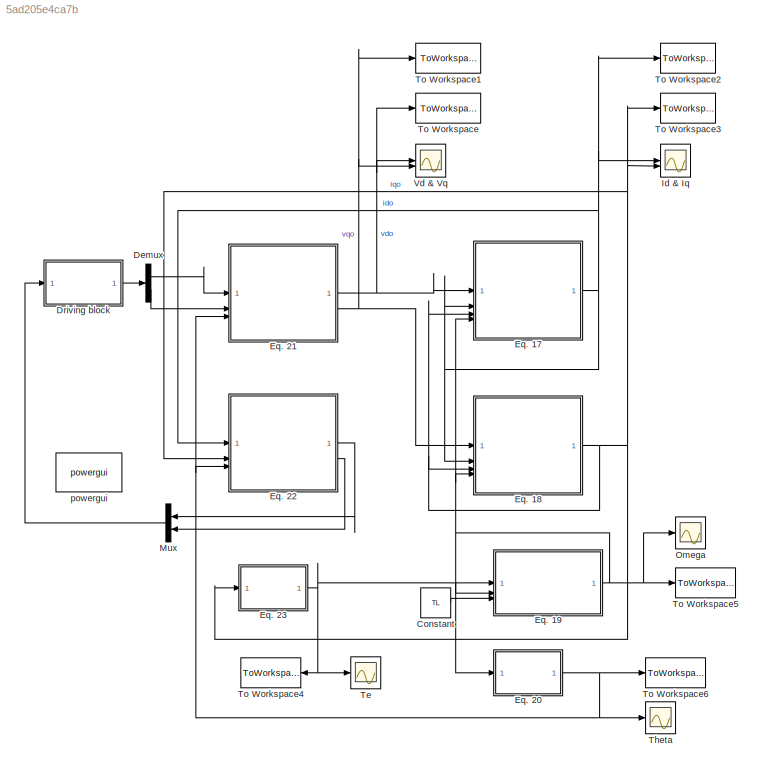
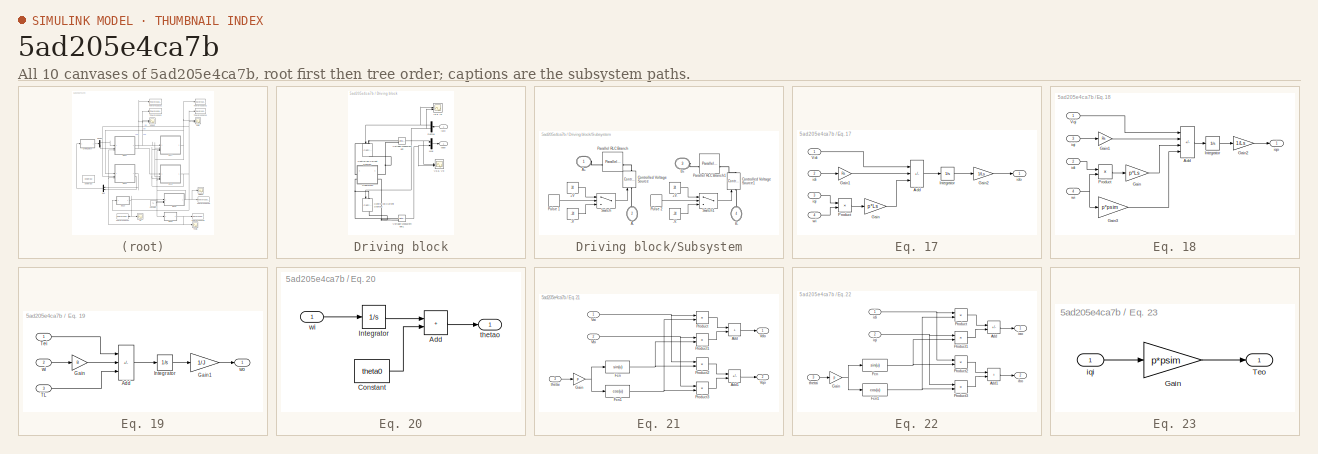
[diagram: thumbnail index - all 10 canvases of the model, root first then tree order]
MODEL slx_5ad205e4ca7b
KIND model
CONFIG AbsTol = auto
CONFIG EnableMultiTasking = on
CONFIG FixedStep = auto
CONFIG MaxStep = auto
CONFIG MinStep = auto
CONFIG RelTol = 1e-3
CONFIG SampleTimeConstraint = Unconstrained
CONFIG SolverName = ode45
CONFIG StartTime = 0.0
CONFIG StopTime = 0.2
BLOCK [Constant] Constant
  Value = TL
BLOCK [Demux] Demux
  Outputs = 2
BLOCK [SubSystem] Driving block
BLOCK [Reference] Driving block/Controlled Current Source1  REF=spsControlledCurrentSourceLib/Controlled Current Source
  LibrarySourceBlock = sps_lib/Sources/Controlled Current Source
  NameLocation = top
  SourceBlock = spsControlledCurrentSourceLib/Controlled Current Source
  SourceType = Controlled Current Source
BLOCK [Reference] Driving block/Controlled Current Source2  REF=spsControlledCurrentSourceLib/Controlled Current Source
  LibrarySourceBlock = sps_lib/Sources/Controlled Current Source
  NameLocation = top
  SourceBlock = spsControlledCurrentSourceLib/Controlled Current Source
  SourceType = Controlled Current Source
BLOCK [Demux] Driving block/Demux
  NameLocation = top
  Outputs = 2
BLOCK [Scope] Driving block/Ia & Ib
  Floating = off
  NumInputPorts = 2
  ScopeSpecificationString = Simulink.scopes.TimeScopeBlockCfg('CurrentConfiguration', extmgr.ConfigurationSet(extmgr.Configuration('Core','General UI',true),extmgr.Configuration('Core','Source UI',true),extmgr.Configuration('Sources','WiredSimulink',true,'DataLoggingVariableName','ScopeData2'),extmgr.Configuration('Visuals','Time Domain',true,'SerializedDisplays',{struct('MinYLimReal','-16.38815','MaxYLimReal','16.38822','YL...<+1441ch>
BLOCK [Mux] Driving block/Mux
  DisplayOption = bar
  Inputs = 2
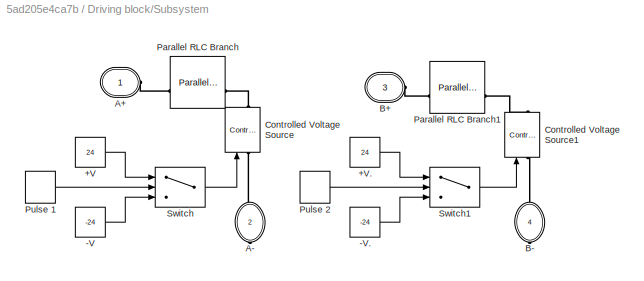
BLOCK [SubSystem] Driving block/Subsystem
BLOCK [Constant] Driving block/Subsystem/+V
  Value = 24
BLOCK [Constant] Driving block/Subsystem/+V.
  Value = 24
BLOCK [Constant] Driving block/Subsystem/-V
  Value = -24
BLOCK [Constant] Driving block/Subsystem/-V.
  Value = -24
BLOCK [PMIOPort] Driving block/Subsystem/A+
  Side = Left
BLOCK [PMIOPort] Driving block/Subsystem/A-
  NameLocation = right
  Port = 2
  Side = Right
BLOCK [PMIOPort] Driving block/Subsystem/B+
  Port = 3
  Side = Left
BLOCK [PMIOPort] Driving block/Subsystem/B-
  NameLocation = right
  Port = 4
  Side = Right
BLOCK [Reference] Driving block/Subsystem/Controlled Voltage Source  REF=spsControlledVoltageSourceLib/Controlled Voltage Source
  LibrarySourceBlock = sps_lib/Sources/Controlled Voltage Source
  SourceBlock = spsControlledVoltageSourceLib/Controlled Voltage Source
  SourceType = Controlled Voltage Source
BLOCK [Reference] Driving block/Subsystem/Controlled Voltage Source1  REF=spsControlledVoltageSourceLib/Controlled Voltage Source
  LibrarySourceBlock = sps_lib/Sources/Controlled Voltage Source
  SourceBlock = spsControlledVoltageSourceLib/Controlled Voltage Source
  SourceType = Controlled Voltage Source
BLOCK [Reference] Driving block/Subsystem/Parallel RLC Branch  REF=spsParallelRLCBranchLib/Parallel RLC Branch
  AttributesFormatString = \n
  LibrarySourceBlock = sps_lib/Passives/Parallel RLC Branch
  SourceBlock = spsParallelRLCBranchLib/Parallel RLC Branch
  SourceType = Parallel RLC Branch
BLOCK [Reference] Driving block/Subsystem/Parallel RLC Branch1  REF=spsParallelRLCBranchLib/Parallel RLC Branch
  AttributesFormatString = \n
  LibrarySourceBlock = sps_lib/Passives/Parallel RLC Branch
  SourceBlock = spsParallelRLCBranchLib/Parallel RLC Branch
  SourceType = Parallel RLC Branch
BLOCK [DiscretePulseGenerator] Driving block/Subsystem/Pulse 1
  Period = 0.1
  PulseType = Time based
  PulseWidth = 50
BLOCK [DiscretePulseGenerator] Driving block/Subsystem/Pulse 2
  Period = 0.1
  PhaseDelay = 0.025
  PulseType = Time based
  PulseWidth = 50
BLOCK [Switch] Driving block/Subsystem/Switch
  Criteria = u2 > Threshold
  InputSameDT = off
  SaturateOnIntegerOverflow = off
BLOCK [Switch] Driving block/Subsystem/Switch1
  Criteria = u2 > Threshold
  InputSameDT = off
  SaturateOnIntegerOverflow = off
BLOCK [Scope] Driving block/Va & Vb
  Floating = off
  NumInputPorts = 2
  ScopeSpecificationString = Simulink.scopes.TimeScopeBlockCfg('CurrentConfiguration', extmgr.ConfigurationSet(extmgr.Configuration('Core','General UI',true),extmgr.Configuration('Core','Source UI',true),extmgr.Configuration('Sources','WiredSimulink',true,'DataLoggingVariableName','ScopeData1'),extmgr.Configuration('Visuals','Time Domain',true,'SerializedDisplays',{struct('MinYLimReal','-44.90959','MaxYLimReal','45.01956','YL...<+1466ch>
BLOCK [Reference] Driving block/Voltage Measurement  REF=spsVoltageMeasurementLib/Voltage Measurement
  LibrarySourceBlock = sps_lib/Sensors and Measurements/Voltage Measurement
  SourceBlock = spsVoltageMeasurementLib/Voltage Measurement
  SourceType = Voltage Measurement
  UserDataPersistent = on
BLOCK [Reference] Driving block/Voltage Measurement1  REF=spsVoltageMeasurementLib/Voltage Measurement
  LibrarySourceBlock = sps_lib/Sensors and Measurements/Voltage Measurement
  SourceBlock = spsVoltageMeasurementLib/Voltage Measurement
  SourceType = Voltage Measurement
  UserDataPersistent = on
BLOCK [Inport] Driving block/iaib
BLOCK [Outport] Driving block/vavb
BLOCK [SubSystem] Eq. 17
BLOCK [Sum] Eq. 17/Add
  IconShape = rectangular
  Inputs = +-+
BLOCK [Gain] Eq. 17/Gain
  Gain = p*Ls
BLOCK [Gain] Eq. 17/Gain1
  Gain = Rs
BLOCK [Gain] Eq. 17/Gain2
  Gain = 1/Ls
BLOCK [Integrator] Eq. 17/Integrator
BLOCK [Product] Eq. 17/Product
BLOCK [Inport] Eq. 17/Vdi
BLOCK [Inport] Eq. 17/idi
  Port = 2
BLOCK [Outport] Eq. 17/ido
BLOCK [Inport] Eq. 17/iqi
  Port = 3
BLOCK [Inport] Eq. 17/wi
  Port = 4
BLOCK [SubSystem] Eq. 18
BLOCK [Sum] Eq. 18/Add
  IconShape = rectangular
  Inputs = +---
BLOCK [Gain] Eq. 18/Gain
  Gain = p*Ls
BLOCK [Gain] Eq. 18/Gain1
  Gain = Rs
BLOCK [Gain] Eq. 18/Gain2
  Gain = 1/Ls
BLOCK [Gain] Eq. 18/Gain3
  Gain = p*psim
BLOCK [Integrator] Eq. 18/Integrator
BLOCK [Product] Eq. 18/Product
BLOCK [Inport] Eq. 18/Vqi
BLOCK [Inport] Eq. 18/idi
  Port = 2
BLOCK [Inport] Eq. 18/iqi
  Port = 3
BLOCK [Outport] Eq. 18/iqo
BLOCK [Inport] Eq. 18/wi
  Port = 4
BLOCK [SubSystem] Eq. 19
BLOCK [Sum] Eq. 19/Add
  IconShape = rectangular
  Inputs = +--
BLOCK [Gain] Eq. 19/Gain
  Gain = B
BLOCK [Gain] Eq. 19/Gain1
  Gain = 1/J
BLOCK [Integrator] Eq. 19/Integrator
BLOCK [Inport] Eq. 19/TL
  Port = 3
BLOCK [Inport] Eq. 19/Tei
BLOCK [Inport] Eq. 19/wi
  Port = 2
BLOCK [Outport] Eq. 19/wo
BLOCK [SubSystem] Eq. 20
BLOCK [Sum] Eq. 20/Add
  IconShape = rectangular
BLOCK [Constant] Eq. 20/Constant
  Value = theta0
BLOCK [Integrator] Eq. 20/Integrator
BLOCK [Outport] Eq. 20/thetao
BLOCK [Inport] Eq. 20/wi
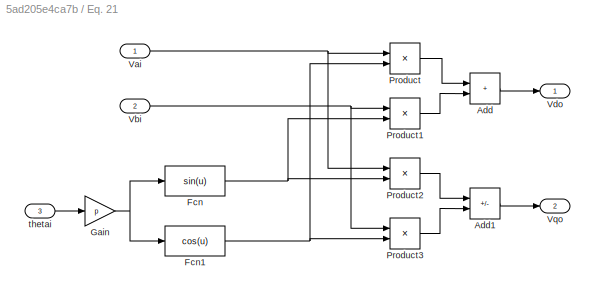
BLOCK [SubSystem] Eq. 21
BLOCK [Sum] Eq. 21/Add
  IconShape = rectangular
BLOCK [Sum] Eq. 21/Add1
  IconShape = rectangular
  Inputs = -+
BLOCK [Fcn] Eq. 21/Fcn
  Expr = sin(u)
BLOCK [Fcn] Eq. 21/Fcn1
  Expr = cos(u)
BLOCK [Gain] Eq. 21/Gain
  Gain = p
BLOCK [Product] Eq. 21/Product
BLOCK [Product] Eq. 21/Product1
BLOCK [Product] Eq. 21/Product2
BLOCK [Product] Eq. 21/Product3
BLOCK [Inport] Eq. 21/Vai
BLOCK [Inport] Eq. 21/Vbi
  Port = 2
BLOCK [Outport] Eq. 21/Vdo
BLOCK [Outport] Eq. 21/Vqo
  Port = 2
BLOCK [Inport] Eq. 21/thetai
  Port = 3
BLOCK [SubSystem] Eq. 22
BLOCK [Sum] Eq. 22/Add
  IconShape = rectangular
  Inputs = +-
BLOCK [Sum] Eq. 22/Add1
  IconShape = rectangular
BLOCK [Fcn] Eq. 22/Fcn
  Expr = sin(u)
BLOCK [Fcn] Eq. 22/Fcn1
  Expr = cos(u)
BLOCK [Gain] Eq. 22/Gain
  Gain = p
BLOCK [Product] Eq. 22/Product
BLOCK [Product] Eq. 22/Product1
BLOCK [Product] Eq. 22/Product2
BLOCK [Product] Eq. 22/Product3
BLOCK [Outport] Eq. 22/iao
BLOCK [Outport] Eq. 22/ibo
  Port = 2
BLOCK [Inport] Eq. 22/idi
BLOCK [Inport] Eq. 22/iqi
  Port = 2
BLOCK [Inport] Eq. 22/thetai
  Port = 3
BLOCK [SubSystem] Eq. 23
BLOCK [Gain] Eq. 23/Gain
  Gain = p*psim
BLOCK [Outport] Eq. 23/Teo
BLOCK [Inport] Eq. 23/iqi
BLOCK [Scope] Id & Iq
  Floating = off
  NumInputPorts = 2
  ScopeSpecificationString = Simulink.scopes.TimeScopeBlockCfg('CurrentConfiguration', extmgr.ConfigurationSet(extmgr.Configuration('Core','General UI',true),extmgr.Configuration('Core','Source UI',true),extmgr.Configuration('Sources','WiredSimulink',true,'DataLoggingVariableName','ScopeData1'),extmgr.Configuration('Visuals','Time Domain',true,'SerializedDisplays',{struct('MinYLimReal','-10.21296','MaxYLimReal','16.83355','YL...<+1633ch>
BLOCK [Mux] Mux
  DisplayOption = bar
  Inputs = 2
  NameLocation = top
BLOCK [Scope] Omega
  Floating = off
  NumInputPorts = 1
  ScopeSpecificationString = Simulink.scopes.TimeScopeBlockCfg('CurrentConfiguration', extmgr.ConfigurationSet(extmgr.Configuration('Core','General UI',true),extmgr.Configuration('Core','Source UI',true),extmgr.Configuration('Sources','WiredSimulink',true,'DataLoggingVariableName','ScopeData1'),extmgr.Configuration('Visuals','Time Domain',true,'SerializedDisplays',{struct('MinYLimReal','-127.33481','MaxYLimReal','171.53555','...<+1404ch>
BLOCK [Scope] Te
  Floating = off
  NumInputPorts = 1
  ScopeSpecificationString = Simulink.scopes.TimeScopeBlockCfg('CurrentConfiguration', extmgr.ConfigurationSet(extmgr.Configuration('Core','General UI',true),extmgr.Configuration('Core','Source UI',true),extmgr.Configuration('Sources','WiredSimulink',true,'DataLoggingVariableName','ScopeData3'),extmgr.Configuration('Visuals','Time Domain',true,'SerializedDisplays',{struct('MinYLimReal','-1.1916','MaxYLimReal','1.71442','YLabe...<+1363ch>
BLOCK [Scope] Theta
  Floating = off
  NumInputPorts = 1
  ScopeSpecificationString = Simulink.scopes.TimeScopeBlockCfg('CurrentConfiguration', extmgr.ConfigurationSet(extmgr.Configuration('Core','General UI',true),extmgr.Configuration('Core','Source UI',true),extmgr.Configuration('Sources','WiredSimulink',true,'DataLoggingVariableName','ScopeData2'),extmgr.Configuration('Visuals','Time Domain',true,'SerializedDisplays',{struct('MinYLimReal','-0.87308','MaxYLimReal','3.97359','YLab...<+1365ch>
BLOCK [ToWorkspace] To Workspace
  FixptAsFi = on
  MaxDataPoints = inf
  SampleTime = -1
  SaveFormat = Timeseries
  VariableName = sim_vd
BLOCK [ToWorkspace] To Workspace1
  FixptAsFi = on
  MaxDataPoints = inf
  SampleTime = -1
  SaveFormat = Timeseries
  VariableName = sim_vq
BLOCK [ToWorkspace] To Workspace2
  FixptAsFi = on
  MaxDataPoints = inf
  SampleTime = -1
  SaveFormat = Timeseries
  VariableName = sim_id
BLOCK [ToWorkspace] To Workspace3
  FixptAsFi = on
  MaxDataPoints = inf
  SampleTime = -1
  SaveFormat = Timeseries
  VariableName = sim_iq
BLOCK [ToWorkspace] To Workspace4
  FixptAsFi = on
  MaxDataPoints = inf
  NameLocation = top
  SampleTime = -1
  SaveFormat = Timeseries
  VariableName = sim_Te
BLOCK [ToWorkspace] To Workspace5
  FixptAsFi = on
  MaxDataPoints = inf
  SampleTime = -1
  SaveFormat = Timeseries
  VariableName = sim_w
BLOCK [ToWorkspace] To Workspace6
  FixptAsFi = on
  MaxDataPoints = inf
  SampleTime = -1
  SaveFormat = Timeseries
  VariableName = sim_theta
BLOCK [Scope] Vd & Vq
  Floating = off
  NumInputPorts = 2
  ScopeSpecificationString = Simulink.scopes.TimeScopeBlockCfg('CurrentConfiguration', extmgr.ConfigurationSet(extmgr.Configuration('Core','General UI',true),extmgr.Configuration('Core','Source UI',true),extmgr.Configuration('Sources','WiredSimulink',true),extmgr.Configuration('Visuals','Time Domain',true,'SerializedDisplays',{struct('MinYLimReal','-46.94796','MaxYLimReal','38.44252','YLabelReal','','MinYLimMag','0.00000','Ma...<+1413ch>
BLOCK [Reference] powergui  REF=sps_lib/powergui
  Priority = 1
  SourceBlock = sps_lib/powergui
  SourceType = PSB option menu block
LINE Constant:1 -> Eq. 19:3
LINE Demux:1 -> Eq. 21:1
LINE Demux:2 -> Eq. 21:2
NET Driving block/Demux:1 -> Driving block/Controlled Current Source1:1, Driving block/Ia & Ib:1
NET Driving block/Demux:2 -> Driving block/Controlled Current Source2:1, Driving block/Ia & Ib:2
LINE Driving block/Mux:1 -> Driving block/vavb:1
LINE Driving block/Subsystem/+V.:1 -> Driving block/Subsystem/Switch1:1
LINE Driving block/Subsystem/+V:1 -> Driving block/Subsystem/Switch:1
LINE Driving block/Subsystem/-V.:1 -> Driving block/Subsystem/Switch1:3
LINE Driving block/Subsystem/-V:1 -> Driving block/Subsystem/Switch:3
LINE Driving block/Subsystem/Pulse 1:1 -> Driving block/Subsystem/Switch:2
LINE Driving block/Subsystem/Pulse 2:1 -> Driving block/Subsystem/Switch1:2
LINE Driving block/Subsystem/Switch1:1 -> Driving block/Subsystem/Controlled Voltage Source1:1
LINE Driving block/Subsystem/Switch:1 -> Driving block/Subsystem/Controlled Voltage Source:1
NET Driving block/Voltage Measurement1:1 -> Driving block/Mux:2, Driving block/Va & Vb:2
NET Driving block/Voltage Measurement:1 -> Driving block/Mux:1, Driving block/Va & Vb:1
LINE Driving block/iaib:1 -> Driving block/Demux:1
LINE Driving block:1 -> Demux:1
LINE Eq. 17/Add:1 -> Eq. 17/Integrator:1
LINE Eq. 17/Gain1:1 -> Eq. 17/Add:2
LINE Eq. 17/Gain2:1 -> Eq. 17/ido:1
LINE Eq. 17/Gain:1 -> Eq. 17/Add:3
LINE Eq. 17/Integrator:1 -> Eq. 17/Gain2:1
LINE Eq. 17/Product:1 -> Eq. 17/Gain:1
LINE Eq. 17/Vdi:1 -> Eq. 17/Add:1
LINE Eq. 17/idi:1 -> Eq. 17/Gain1:1
LINE Eq. 17/iqi:1 -> Eq. 17/Product:1
LINE Eq. 17/wi:1 -> Eq. 17/Product:2
NET Eq. 17:1 -> Eq. 17:2, Eq. 18:2, Eq. 22:1, Id & Iq:1, To Workspace2:1
LINE Eq. 18/Add:1 -> Eq. 18/Integrator:1
LINE Eq. 18/Gain1:1 -> Eq. 18/Add:2
LINE Eq. 18/Gain2:1 -> Eq. 18/iqo:1
LINE Eq. 18/Gain3:1 -> Eq. 18/Add:4
LINE Eq. 18/Gain:1 -> Eq. 18/Add:3
LINE Eq. 18/Integrator:1 -> Eq. 18/Gain2:1
LINE Eq. 18/Product:1 -> Eq. 18/Gain:1
LINE Eq. 18/Vqi:1 -> Eq. 18/Add:1
LINE Eq. 18/idi:1 -> Eq. 18/Product:1
LINE Eq. 18/iqi:1 -> Eq. 18/Gain1:1
NET Eq. 18/wi:1 -> Eq. 18/Gain3:1, Eq. 18/Product:2
NET Eq. 18:1 -> Eq. 17:3, Eq. 18:3, Eq. 22:2, Eq. 23:1, Id & Iq:2, To Workspace3:1
LINE Eq. 19/Add:1 -> Eq. 19/Integrator:1
LINE Eq. 19/Gain1:1 -> Eq. 19/wo:1
LINE Eq. 19/Gain:1 -> Eq. 19/Add:2
LINE Eq. 19/Integrator:1 -> Eq. 19/Gain1:1
LINE Eq. 19/TL:1 -> Eq. 19/Add:3
LINE Eq. 19/Tei:1 -> Eq. 19/Add:1
LINE Eq. 19/wi:1 -> Eq. 19/Gain:1
NET Eq. 19:1 -> Eq. 17:4, Eq. 18:4, Eq. 19:2, Eq. 20:1, Omega:1, To Workspace5:1
LINE Eq. 20/Add:1 -> Eq. 20/thetao:1
LINE Eq. 20/Constant:1 -> Eq. 20/Add:2
LINE Eq. 20/Integrator:1 -> Eq. 20/Add:1
LINE Eq. 20/wi:1 -> Eq. 20/Integrator:1
NET Eq. 20:1 -> Eq. 21:3, Eq. 22:3, Theta:1, To Workspace6:1
LINE Eq. 21/Add1:1 -> Eq. 21/Vqo:1
LINE Eq. 21/Add:1 -> Eq. 21/Vdo:1
NET Eq. 21/Fcn1:1 -> Eq. 21/Product3:2, Eq. 21/Product:2
NET Eq. 21/Fcn:1 -> Eq. 21/Product1:2, Eq. 21/Product2:2
NET Eq. 21/Gain:1 -> Eq. 21/Fcn1:1, Eq. 21/Fcn:1
LINE Eq. 21/Product1:1 -> Eq. 21/Add:2
LINE Eq. 21/Product2:1 -> Eq. 21/Add1:1
LINE Eq. 21/Product3:1 -> Eq. 21/Add1:2
LINE Eq. 21/Product:1 -> Eq. 21/Add:1
NET Eq. 21/Vai:1 -> Eq. 21/Product2:1, Eq. 21/Product:1
NET Eq. 21/Vbi:1 -> Eq. 21/Product1:1, Eq. 21/Product3:1
LINE Eq. 21/thetai:1 -> Eq. 21/Gain:1
NET Eq. 21:1 -> Eq. 17:1, To Workspace:1, Vd & Vq:1
NET Eq. 21:2 -> Eq. 18:1, To Workspace1:1, Vd & Vq:2
LINE Eq. 22/Add1:1 -> Eq. 22/ibo:1
LINE Eq. 22/Add:1 -> Eq. 22/iao:1
NET Eq. 22/Fcn1:1 -> Eq. 22/Product3:2, Eq. 22/Product:2
NET Eq. 22/Fcn:1 -> Eq. 22/Product1:2, Eq. 22/Product2:2
NET Eq. 22/Gain:1 -> Eq. 22/Fcn1:1, Eq. 22/Fcn:1
LINE Eq. 22/Product1:1 -> Eq. 22/Add:2
LINE Eq. 22/Product2:1 -> Eq. 22/Add1:1
LINE Eq. 22/Product3:1 -> Eq. 22/Add1:2
LINE Eq. 22/Product:1 -> Eq. 22/Add:1
NET Eq. 22/idi:1 -> Eq. 22/Product2:1, Eq. 22/Product:1
NET Eq. 22/iqi:1 -> Eq. 22/Product1:1, Eq. 22/Product3:1
LINE Eq. 22/thetai:1 -> Eq. 22/Gain:1
LINE Eq. 22:1 -> Mux:1
LINE Eq. 22:2 -> Mux:2
LINE Eq. 23/Gain:1 -> Eq. 23/Teo:1
LINE Eq. 23/iqi:1 -> Eq. 23/Gain:1
NET Eq. 23:1 -> Eq. 19:1, Te:1, To Workspace4:1
LINE Mux:1 -> Driving block:1
PNET net1: Driving block/Controlled Current Source1:LConn1 -- Driving block/Subsystem:LConn1 -- Driving block/Voltage Measurement:LConn1
PNET net2: Driving block/Controlled Current Source1:RConn1 -- Driving block/Subsystem:RConn1 -- Driving block/Voltage Measurement:LConn2
PNET net3: Driving block/Controlled Current Source2:LConn1 -- Driving block/Subsystem:LConn2 -- Driving block/Voltage Measurement1:LConn1
PNET net4: Driving block/Controlled Current Source2:RConn1 -- Driving block/Subsystem:RConn2 -- Driving block/Voltage Measurement1:LConn2
PLINE Driving block/Subsystem/A+:RConn1 -- Driving block/Subsystem/Parallel RLC Branch:LConn1
PLINE Driving block/Subsystem/A-:RConn1 -- Driving block/Subsystem/Controlled Voltage Source:LConn1
PLINE Driving block/Subsystem/B+:RConn1 -- Driving block/Subsystem/Parallel RLC Branch1:LConn1
PLINE Driving block/Subsystem/B-:RConn1 -- Driving block/Subsystem/Controlled Voltage Source1:LConn1
PLINE Driving block/Subsystem/Controlled Voltage Source1:RConn1 -- Driving block/Subsystem/Parallel RLC Branch1:RConn1
PLINE Driving block/Subsystem/Controlled Voltage Source:RConn1 -- Driving block/Subsystem/Parallel RLC Branch:RConn1
note: NET lines group one-source signal fan-out (src -> all destinations, sorted); 1:1 wires keep LINE; PNET lines group multi-terminal physical nets as a canonical sorted terminal list (undirected conserving connections); 2-terminal nets keep the pairwise PLINE form
